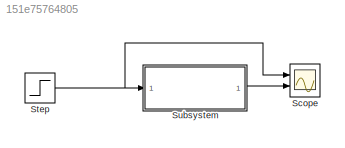
MODEL slx_151e75764805
KIND model
CONFIG AbsTol = auto
CONFIG EnableMultiTasking = off
CONFIG FixedStep = 0.001
CONFIG MaxStep = auto
CONFIG MinStep = auto
CONFIG RelTol = 1e-3
CONFIG SampleTimeConstraint = Unconstrained
CONFIG Solver = FixedStepAuto
CONFIG SolverName = FixedStepAuto
CONFIG StartTime = 0.0
CONFIG StopTime = 15
BLOCK [Scope] Scope
  Floating = off
  NumInputPorts = 2
  Ports = [2]
  ScopeSpecificationString = Simulink.scopes.TimeScopeBlockCfg('CurrentConfiguration', extmgr.ConfigurationSet(extmgr.Configuration('Core','General UI',true),extmgr.Configuration('Core','Source UI',true),extmgr.Configuration('Sources','WiredSimulink',true),extmgr.Configuration('Visuals','Time Domain',true,'SerializedDisplays',{struct('MinYLimReal','-0.125','MaxYLimReal','1.125','YLabelReal','','MinYLimMag','0.00000','MaxYLimM...<+1368ch>
BLOCK [Step] Step
  After = 0
  Before = 1
  SampleTime = 0.001
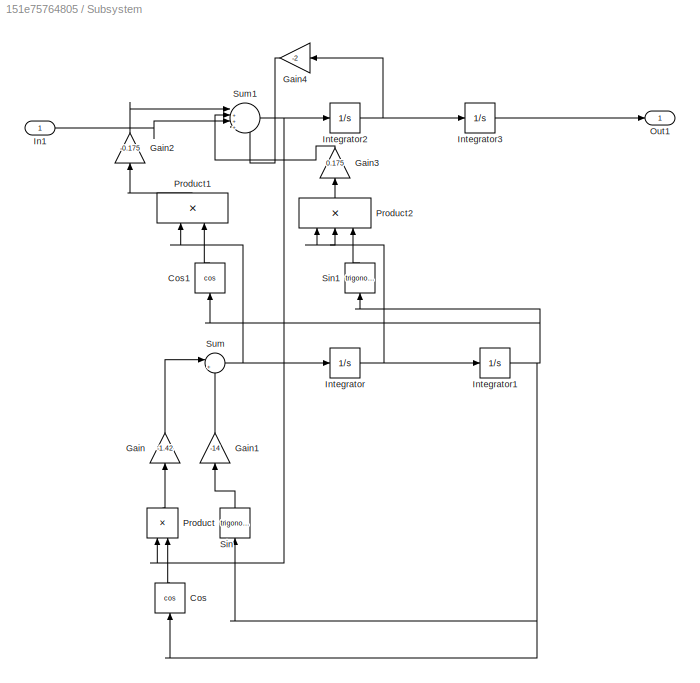
BLOCK [SubSystem] Subsystem
  Ports = [1, 1]
  RequestExecContextInheritance = off
BLOCK [Trigonometry] Subsystem/Cos
  NameLocation = right
  Operator = cos
  Ports = [1, 1]
BLOCK [Trigonometry] Subsystem/Cos1
  NameLocation = right
  Operator = cos
  Ports = [1, 1]
BLOCK [Gain] Subsystem/Gain
  Gain = -1.42
  NameLocation = right
BLOCK [Gain] Subsystem/Gain1
  Gain = -14
  NameLocation = right
BLOCK [Gain] Subsystem/Gain2
  Gain = -0.175
  NameLocation = right
BLOCK [Gain] Subsystem/Gain3
  Gain = 0.175
  NameLocation = right
BLOCK [Gain] Subsystem/Gain4
  Gain = -2
  NameLocation = top
BLOCK [Inport] Subsystem/In1
BLOCK [Integrator] Subsystem/Integrator
  Ports = [1, 1]
BLOCK [Integrator] Subsystem/Integrator1
  Ports = [1, 1]
BLOCK [Integrator] Subsystem/Integrator2
  Ports = [1, 1]
BLOCK [Integrator] Subsystem/Integrator3
  Ports = [1, 1]
BLOCK [Outport] Subsystem/Out1
  VectorParamsAs1DForOutWhenUnconnected = off
BLOCK [Product] Subsystem/Product
  NameLocation = right
  Ports = [2, 1]
BLOCK [Product] Subsystem/Product1
  NameLocation = right
  Ports = [2, 1]
BLOCK [Product] Subsystem/Product2
  Inputs = 3
  NameLocation = right
  Ports = [3, 1]
BLOCK [Trigonometry] Subsystem/Sin
  NameLocation = right
  Ports = [1, 1]
BLOCK [Trigonometry] Subsystem/Sin1
  NameLocation = right
  Ports = [1, 1]
BLOCK [Sum] Subsystem/Sum
  Inputs = |++
  Ports = [2, 1]
BLOCK [Sum] Subsystem/Sum1
  Inputs = |++++
  Ports = [4, 1]
NET Step:1 -> Scope:1, Subsystem:1
LINE Subsystem/Cos1:1 -> Subsystem/Product1:2
LINE Subsystem/Cos:1 -> Subsystem/Product:2
LINE Subsystem/Gain1:1 -> Subsystem/Sum:2
LINE Subsystem/Gain2:1 -> Subsystem/Sum1:1
LINE Subsystem/Gain3:1 -> Subsystem/Sum1:2
LINE Subsystem/Gain4:1 -> Subsystem/Sum1:4
LINE Subsystem/Gain:1 -> Subsystem/Sum:1
LINE Subsystem/In1:1 -> Subsystem/Sum1:3
NET Subsystem/Integrator1:1 -> Subsystem/Cos1:1, Subsystem/Cos:1, Subsystem/Sin1:1, Subsystem/Sin:1
NET Subsystem/Integrator2:1 -> Subsystem/Gain4:1, Subsystem/Integrator3:1
LINE Subsystem/Integrator3:1 -> Subsystem/Out1:1
NET Subsystem/Integrator:1 -> Subsystem/Integrator1:1, Subsystem/Product2:1, Subsystem/Product2:2
LINE Subsystem/Product1:1 -> Subsystem/Gain2:1
LINE Subsystem/Product2:1 -> Subsystem/Gain3:1
LINE Subsystem/Product:1 -> Subsystem/Gain:1
LINE Subsystem/Sin1:1 -> Subsystem/Product2:3
LINE Subsystem/Sin:1 -> Subsystem/Gain1:1
NET Subsystem/Sum1:1 -> Subsystem/Integrator2:1, Subsystem/Product:1
NET Subsystem/Sum:1 -> Subsystem/Integrator:1, Subsystem/Product1:1
LINE Subsystem:1 -> Scope:2
note: NET lines group one-source signal fan-out (src -> all destinations, sorted); 1:1 wires keep LINE
